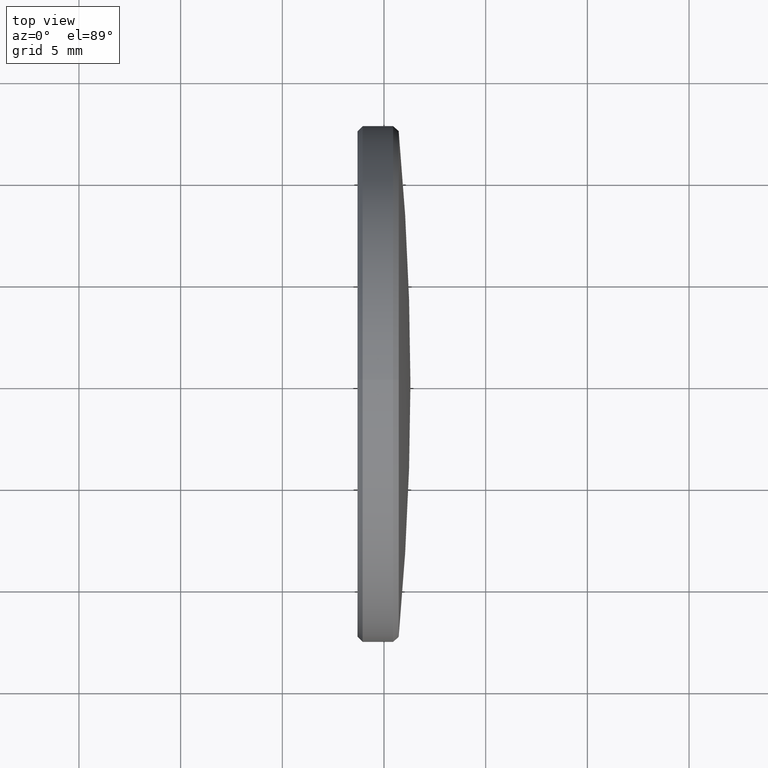
[diagram: clean part render]
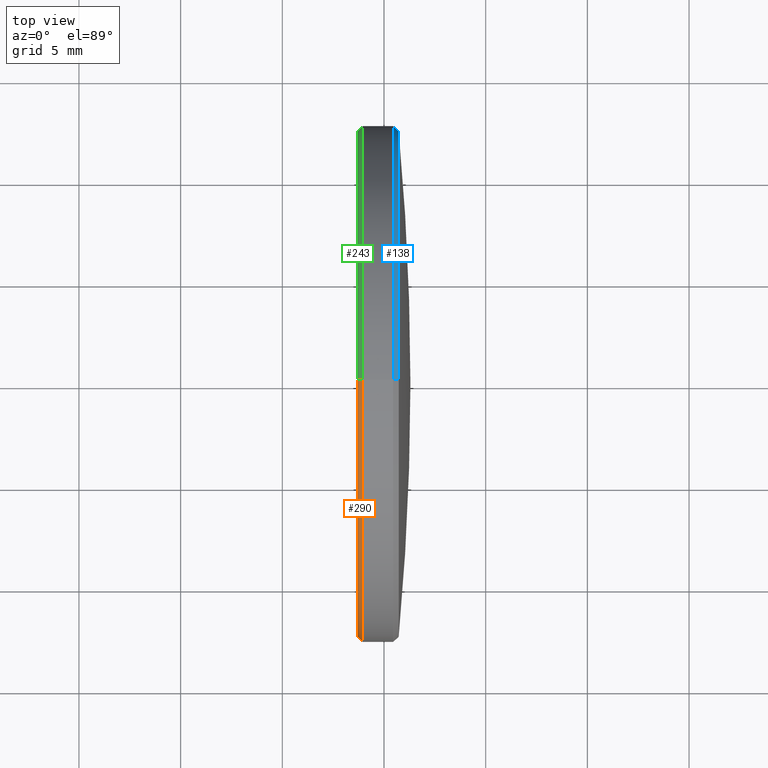
[diagram: same view with three faces highlighted in distinct colors, each labeled with its STEP entity id]
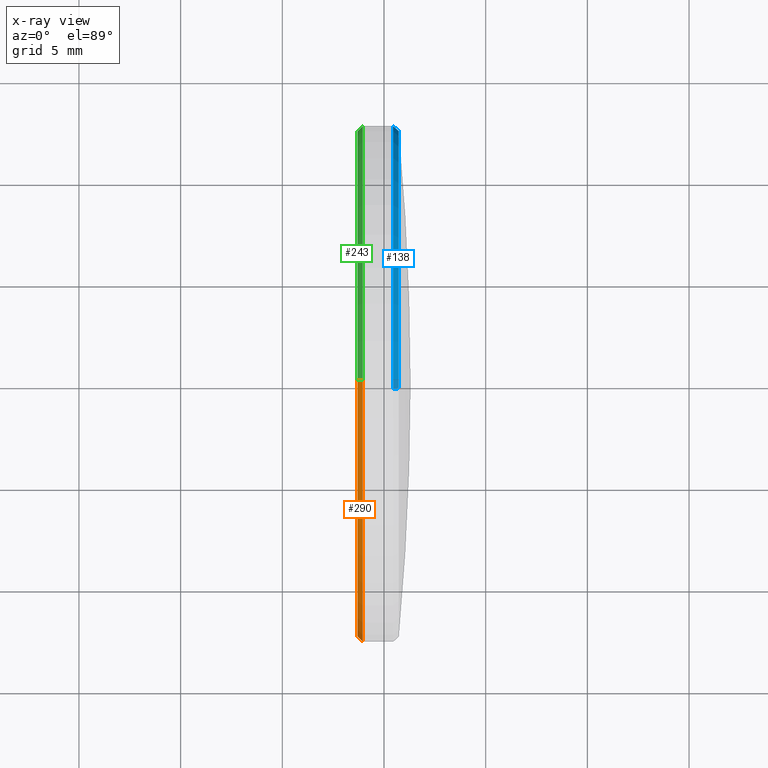
[diagram: x-ray of the same camera — body ghosted, the three highlighted faces saturated]
A machine part, top view with three faces highlighted in distinct colors.
The next image is the same camera in x-ray (body ghosted, the three faces saturated) — at least one of them is partly hidden behind the body in this view.
Their STEP definitions:

[orange] entity #290 — the highlighted conical surface has half-angle 45 deg.
#1 = CIRCLE ( 'NONE', #140, 12.70000000000000100 ) ;
#10 = LINE ( 'NONE', #125, #96 ) ;
#11 = EDGE_CURVE ( 'NONE', #263, #286, #30, .T. ) ;
#12 = DIRECTION ( 'NONE',  ( 1.000000000000000000, 0.0000000000000000000, 0.0000000000000000000 ) ) ;
#13 = DIRECTION ( 'NONE',  ( 0.0000000000000000000, 0.0000000000000000000, -1.000000000000000000 ) ) ;
#19 = EDGE_CURVE ( 'NONE', #83, #286, #1, .T. ) ;
#28 = CARTESIAN_POINT ( 'NONE',  ( -1.300000000000000000, 0.0000000000000000000, 0.0000000000000000000 ) ) ;
#29 = DIRECTION ( 'NONE',  ( 0.7071067811865426900, 0.0000000000000000000, -0.7071067811865524600 ) ) ;
#30 = LINE ( 'NONE', #252, #106 ) ;
#32 = CARTESIAN_POINT ( 'NONE',  ( -1.049999999999999800, 0.0000000000000000000, 12.70000000000000100 ) ) ;
#35 = ORIENTED_EDGE ( 'NONE', *, *, #19, .F. ) ;
#69 = ORIENTED_EDGE ( 'NONE', *, *, #132, .F. ) ;
#75 = DIRECTION ( 'NONE',  ( 0.7071067811865426900, 8.659560562354994500E-017, 0.7071067811865524600 ) ) ;
#83 = VERTEX_POINT ( 'NONE', #32 ) ;
#87 = AXIS2_PLACEMENT_3D ( 'NONE', #28, #199, #112 ) ;
#96 = VECTOR ( 'NONE', #75, 1000.000000000000000 ) ;
#106 = VECTOR ( 'NONE', #29, 1000.000000000000000 ) ;
#112 = DIRECTION ( 'NONE',  ( 0.0000000000000000000, 0.0000000000000000000, -1.000000000000000000 ) ) ;
#125 = CARTESIAN_POINT ( 'NONE',  ( -1.300000000000000000, 1.524685264938454400E-015, 12.44999999999999800 ) ) ;
#126 = CARTESIAN_POINT ( 'NONE',  ( -1.300000000000000000, 1.539993349927796500E-015, 12.44999999999999800 ) ) ;
#129 = CIRCLE ( 'NONE', #87, 12.44999999999999800 ) ;
#132 = EDGE_CURVE ( 'NONE', #263, #205, #129, .T. ) ;
#140 = AXIS2_PLACEMENT_3D ( 'NONE', #239, #234, #13 ) ;
#144 = CARTESIAN_POINT ( 'NONE',  ( -1.049999999999999800, 1.555301434917138600E-015, -12.70000000000000100 ) ) ;
#183 = CONICAL_SURFACE ( 'NONE', #297, 12.44999999999999800, 0.7853981633974552700 ) ;
#189 = EDGE_CURVE ( 'NONE', #205, #83, #10, .T. ) ;
#199 = DIRECTION ( 'NONE',  ( -1.000000000000000000, -0.0000000000000000000, -0.0000000000000000000 ) ) ;
#205 = VERTEX_POINT ( 'NONE', #126 ) ;
#225 = FACE_OUTER_BOUND ( 'NONE', #300, .T. ) ;
#234 = DIRECTION ( 'NONE',  ( 1.000000000000000000, 0.0000000000000000000, 0.0000000000000000000 ) ) ;
#239 = CARTESIAN_POINT ( 'NONE',  ( -1.049999999999999800, 0.0000000000000000000, 0.0000000000000000000 ) ) ;
#246 = CARTESIAN_POINT ( 'NONE',  ( -1.300000000000000000, 0.0000000000000000000, -12.44999999999999800 ) ) ;
#252 = CARTESIAN_POINT ( 'NONE',  ( -1.300000000000000000, 0.0000000000000000000, -12.44999999999999800 ) ) ;
#257 = ORIENTED_EDGE ( 'NONE', *, *, #189, .F. ) ;
#263 = VERTEX_POINT ( 'NONE', #246 ) ;
#267 = DIRECTION ( 'NONE',  ( 0.0000000000000000000, 0.0000000000000000000, -1.000000000000000000 ) ) ;
#269 = CARTESIAN_POINT ( 'NONE',  ( -1.300000000000000000, 0.0000000000000000000, 0.0000000000000000000 ) ) ;
#284 = ORIENTED_EDGE ( 'NONE', *, *, #11, .T. ) ;
#286 = VERTEX_POINT ( 'NONE', #144 ) ;
#290 = ADVANCED_FACE ( 'NONE', ( #225 ), #183, .T. ) ;
#297 = AXIS2_PLACEMENT_3D ( 'NONE', #269, #12, #267 ) ;
#300 = EDGE_LOOP ( 'NONE', ( #257, #69, #284, #35 ) ) ;

[blue] entity #138 — the highlighted conical surface has half-angle 42.327 deg.
#9 = ORIENTED_EDGE ( 'NONE', *, *, #179, .F. ) ;
#20 = DIRECTION ( 'NONE',  ( 1.000000000000000000, 0.0000000000000000000, 0.0000000000000000000 ) ) ;
#24 = AXIS2_PLACEMENT_3D ( 'NONE', #60, #55, #233 ) ;
#40 = ORIENTED_EDGE ( 'NONE', *, *, #266, .T. ) ;
#51 = AXIS2_PLACEMENT_3D ( 'NONE', #175, #20, #137 ) ;
#55 = DIRECTION ( 'NONE',  ( -1.000000000000000000, -0.0000000000000000000, -0.0000000000000000000 ) ) ;
#60 = CARTESIAN_POINT ( 'NONE',  ( 0.4500000000353665500, 0.0000000000000000000, 0.0000000000000000000 ) ) ;
#71 = AXIS2_PLACEMENT_3D ( 'NONE', #220, #147, #279 ) ;
#89 = LINE ( 'NONE', #157, #164 ) ;
#108 = EDGE_LOOP ( 'NONE', ( #154, #40, #238, #9 ) ) ;
#131 = VERTEX_POINT ( 'NONE', #142 ) ;
#134 = CARTESIAN_POINT ( 'NONE',  ( 0.7230408307691560400, 0.0000000000000000000, 12.45131311545400300 ) ) ;
#137 = DIRECTION ( 'NONE',  ( 0.0000000000000000000, 0.0000000000000000000, 1.000000000000000000 ) ) ;
#138 = ADVANCED_FACE ( 'NONE', ( #148 ), #163, .T. ) ;
#142 = CARTESIAN_POINT ( 'NONE',  ( 0.4500000000353665500, 1.555301434917138600E-015, -12.70000000000000100 ) ) ;
#147 = DIRECTION ( 'NONE',  ( -1.000000000000000000, -0.0000000000000000000, -0.0000000000000000000 ) ) ;
#148 = FACE_OUTER_BOUND ( 'NONE', #108, .T. ) ;
#154 = ORIENTED_EDGE ( 'NONE', *, *, #158, .F. ) ;
#157 = CARTESIAN_POINT ( 'NONE',  ( 0.4500000000353665500, 1.555301434917138600E-015, -12.70000000000000100 ) ) ;
#158 = EDGE_CURVE ( 'NONE', #206, #247, #275, .T. ) ;
#163 = CONICAL_SURFACE ( 'NONE', #71, 12.70000000000000100, 0.7387526053002000400 ) ;
#164 = VECTOR ( 'NONE', #285, 1000.000000000000000 ) ;
#167 = VERTEX_POINT ( 'NONE', #282 ) ;
#169 = EDGE_CURVE ( 'NONE', #167, #131, #174, .T. ) ;
#174 = CIRCLE ( 'NONE', #24, 12.70000000000000100 ) ;
#175 = CARTESIAN_POINT ( 'NONE',  ( 0.7230408307691560400, 0.0000000000000000000, 0.0000000000000000000 ) ) ;
#179 = EDGE_CURVE ( 'NONE', #247, #167, #216, .T. ) ;
#190 = VECTOR ( 'NONE', #201, 1000.000000000000000 ) ;
#201 = DIRECTION ( 'NONE',  ( -0.7393090871524890000, 0.0000000000000000000, 0.6733662255071555200 ) ) ;
#206 = VERTEX_POINT ( 'NONE', #258 ) ;
#216 = LINE ( 'NONE', #249, #190 ) ;
#220 = CARTESIAN_POINT ( 'NONE',  ( 0.4500000000353665500, 0.0000000000000000000, 0.0000000000000000000 ) ) ;
#233 = DIRECTION ( 'NONE',  ( 0.0000000000000000000, 0.0000000000000000000, 1.000000000000000000 ) ) ;
#238 = ORIENTED_EDGE ( 'NONE', *, *, #169, .F. ) ;
#247 = VERTEX_POINT ( 'NONE', #134 ) ;
#249 = CARTESIAN_POINT ( 'NONE',  ( 0.4500000000353665500, 0.0000000000000000000, 12.70000000000000100 ) ) ;
#258 = CARTESIAN_POINT ( 'NONE',  ( 0.7230408307691560400, 1.524846075202220200E-015, -12.45131311545400300 ) ) ;
#266 = EDGE_CURVE ( 'NONE', #206, #131, #89, .T. ) ;
#275 = CIRCLE ( 'NONE', #51, 12.45131311545390700 ) ;
#279 = DIRECTION ( 'NONE',  ( 0.0000000000000000000, 0.0000000000000000000, 1.000000000000000000 ) ) ;
#282 = CARTESIAN_POINT ( 'NONE',  ( 0.4500000000353665500, 0.0000000000000000000, 12.70000000000000100 ) ) ;
#285 = DIRECTION ( 'NONE',  ( -0.7393090871524890000, 8.246357927212729600E-017, -0.6733662255071555200 ) ) ;

[green] entity #243 — the highlighted conical surface has half-angle 45 deg.
#4 = DIRECTION ( 'NONE',  ( 0.0000000000000000000, 0.0000000000000000000, -1.000000000000000000 ) ) ;
#10 = LINE ( 'NONE', #125, #96 ) ;
#11 = EDGE_CURVE ( 'NONE', #263, #286, #30, .T. ) ;
#18 = AXIS2_PLACEMENT_3D ( 'NONE', #191, #95, #4 ) ;
#29 = DIRECTION ( 'NONE',  ( 0.7071067811865426900, 0.0000000000000000000, -0.7071067811865524600 ) ) ;
#30 = LINE ( 'NONE', #252, #106 ) ;
#32 = CARTESIAN_POINT ( 'NONE',  ( -1.049999999999999800, 0.0000000000000000000, 12.70000000000000100 ) ) ;
#75 = DIRECTION ( 'NONE',  ( 0.7071067811865426900, 8.659560562354994500E-017, 0.7071067811865524600 ) ) ;
#82 = ORIENTED_EDGE ( 'NONE', *, *, #281, .F. ) ;
#83 = VERTEX_POINT ( 'NONE', #32 ) ;
#92 = EDGE_CURVE ( 'NONE', #286, #83, #280, .T. ) ;
#95 = DIRECTION ( 'NONE',  ( 1.000000000000000000, 0.0000000000000000000, 0.0000000000000000000 ) ) ;
#96 = VECTOR ( 'NONE', #75, 1000.000000000000000 ) ;
#98 = DIRECTION ( 'NONE',  ( 1.000000000000000000, 0.0000000000000000000, 0.0000000000000000000 ) ) ;
#105 = AXIS2_PLACEMENT_3D ( 'NONE', #298, #98, #207 ) ;
#106 = VECTOR ( 'NONE', #29, 1000.000000000000000 ) ;
#109 = ORIENTED_EDGE ( 'NONE', *, *, #92, .F. ) ;
#122 = CIRCLE ( 'NONE', #188, 12.44999999999999800 ) ;
#125 = CARTESIAN_POINT ( 'NONE',  ( -1.300000000000000000, 1.524685264938454400E-015, 12.44999999999999800 ) ) ;
#126 = CARTESIAN_POINT ( 'NONE',  ( -1.300000000000000000, 1.539993349927796500E-015, 12.44999999999999800 ) ) ;
#144 = CARTESIAN_POINT ( 'NONE',  ( -1.049999999999999800, 1.555301434917138600E-015, -12.70000000000000100 ) ) ;
#149 = CONICAL_SURFACE ( 'NONE', #18, 12.44999999999999800, 0.7853981633974552700 ) ;
#188 = AXIS2_PLACEMENT_3D ( 'NONE', #262, #260, #254 ) ;
#189 = EDGE_CURVE ( 'NONE', #205, #83, #10, .T. ) ;
#191 = CARTESIAN_POINT ( 'NONE',  ( -1.300000000000000000, 0.0000000000000000000, 0.0000000000000000000 ) ) ;
#205 = VERTEX_POINT ( 'NONE', #126 ) ;
#207 = DIRECTION ( 'NONE',  ( 0.0000000000000000000, 0.0000000000000000000, -1.000000000000000000 ) ) ;
#217 = ORIENTED_EDGE ( 'NONE', *, *, #11, .F. ) ;
#243 = ADVANCED_FACE ( 'NONE', ( #289 ), #149, .T. ) ;
#246 = CARTESIAN_POINT ( 'NONE',  ( -1.300000000000000000, 0.0000000000000000000, -12.44999999999999800 ) ) ;
#252 = CARTESIAN_POINT ( 'NONE',  ( -1.300000000000000000, 0.0000000000000000000, -12.44999999999999800 ) ) ;
#254 = DIRECTION ( 'NONE',  ( 0.0000000000000000000, 0.0000000000000000000, -1.000000000000000000 ) ) ;
#260 = DIRECTION ( 'NONE',  ( -1.000000000000000000, -0.0000000000000000000, -0.0000000000000000000 ) ) ;
#262 = CARTESIAN_POINT ( 'NONE',  ( -1.300000000000000000, 0.0000000000000000000, 0.0000000000000000000 ) ) ;
#263 = VERTEX_POINT ( 'NONE', #246 ) ;
#278 = EDGE_LOOP ( 'NONE', ( #82, #287, #109, #217 ) ) ;
#280 = CIRCLE ( 'NONE', #105, 12.70000000000000100 ) ;
#281 = EDGE_CURVE ( 'NONE', #205, #263, #122, .T. ) ;
#286 = VERTEX_POINT ( 'NONE', #144 ) ;
#287 = ORIENTED_EDGE ( 'NONE', *, *, #189, .T. ) ;
#289 = FACE_OUTER_BOUND ( 'NONE', #278, .T. ) ;
#298 = CARTESIAN_POINT ( 'NONE',  ( -1.049999999999999800, 0.0000000000000000000, 0.0000000000000000000 ) ) ;